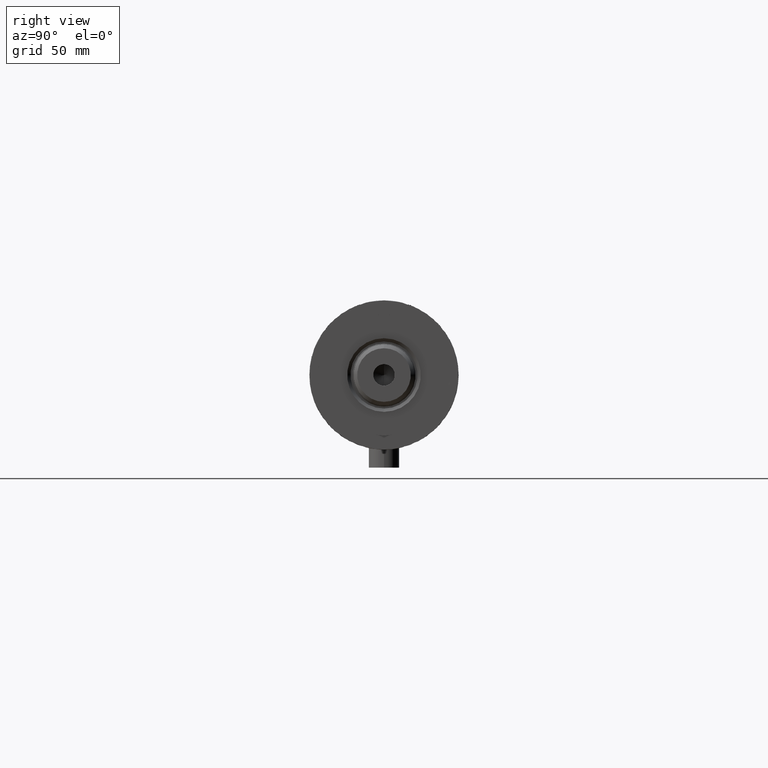
[diagram: clean part render]
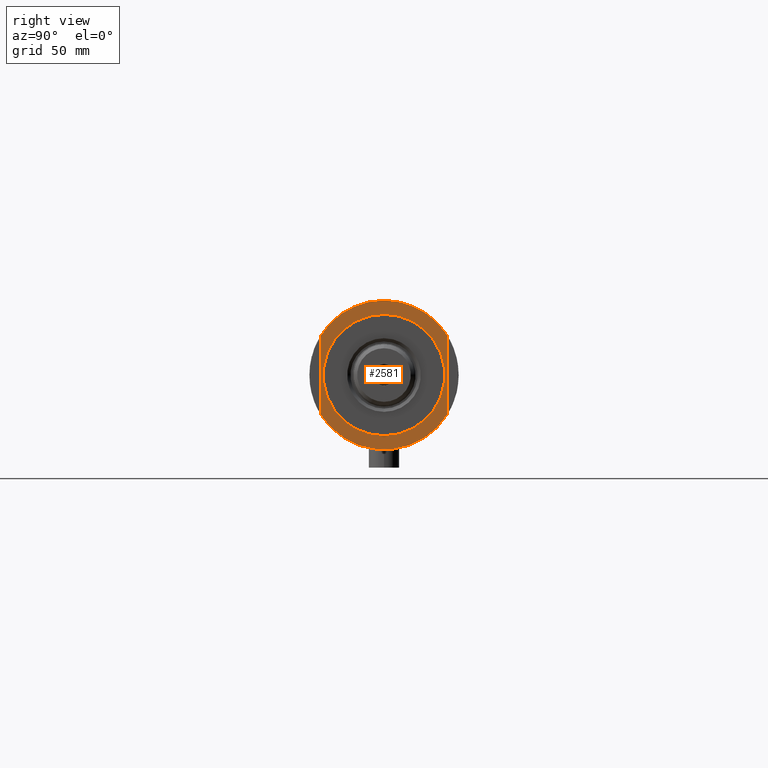
[diagram: same view with one face highlighted and labeled with its STEP entity id]
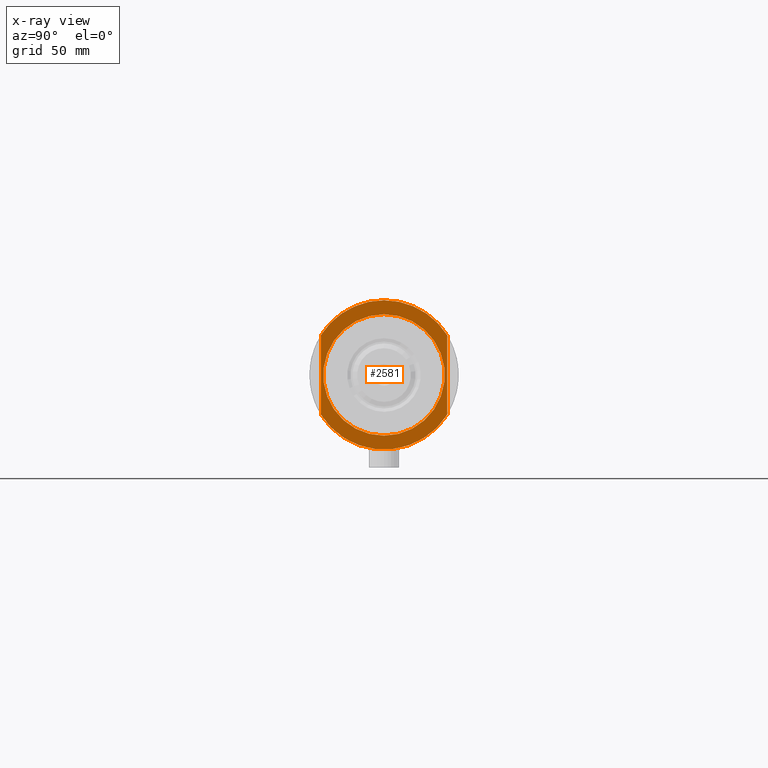
[diagram: x-ray of the same camera — body ghosted, the highlighted face saturated]
A machine part, right view. The second image highlights one B-rep face of the part: STEP entity #2581.
The next image is the same camera in x-ray: the body ghosted, the highlighted face saturated — about 0% of this face is hidden behind the body in this view.
In plain terms, the highlighted planar face has unit normal (1, 0, -0).
Its self-contained STEP definition (entity closure, byte-faithful):
#43 = VERTEX_POINT ( 'NONE', #2637 ) ;
#177 = DIRECTION ( 'NONE',  ( 1.000000000000000000, 0.000000000000000000, 0.000000000000000000 ) ) ;
#193 = DIRECTION ( 'NONE',  ( 0.000000000000000000, 0.000000000000000000, 1.000000000000000000 ) ) ;
#220 = CARTESIAN_POINT ( 'NONE',  ( -29.50000000000000355, 0.000000000000000000, 21.00000000000000000 ) ) ;
#242 = PLANE ( 'NONE',  #499 ) ;
#462 = CARTESIAN_POINT ( 'NONE',  ( 24.00000000000000000, 0.000000000000000000, 21.00000000000000000 ) ) ;
#490 = ORIENTED_EDGE ( 'NONE', *, *, #1220, .T. ) ;
#499 = AXIS2_PLACEMENT_3D ( 'NONE', #2124, #2542, #1049 ) ;
#515 = DIRECTION ( 'NONE',  ( -0.000000000000000000, -0.000000000000000000, -1.000000000000000000 ) ) ;
#537 = CARTESIAN_POINT ( 'NONE',  ( -15.66045976336583045, 24.99999999999999645, 21.00000000000000355 ) ) ;
#579 = AXIS2_PLACEMENT_3D ( 'NONE', #2901, #193, #2074 ) ;
#631 = DIRECTION ( 'NONE',  ( 1.000000000000000000, 0.000000000000000000, 0.000000000000000000 ) ) ;
#665 = VECTOR ( 'NONE', #1414, 1000.000000000000000 ) ;
#826 = CIRCLE ( 'NONE', #1754, 29.50000000000000355 ) ;
#863 = DIRECTION ( 'NONE',  ( 0.000000000000000000, 0.000000000000000000, 1.000000000000000000 ) ) ;
#897 = AXIS2_PLACEMENT_3D ( 'NONE', #3958, #4708, #631 ) ;
#917 = VERTEX_POINT ( 'NONE', #537 ) ;
#979 = EDGE_CURVE ( 'NONE', #4603, #2864, #2680, .T. ) ;
#997 = ORIENTED_EDGE ( 'NONE', *, *, #2135, .T. ) ;
#1049 = DIRECTION ( 'NONE',  ( 1.000000000000000000, 0.000000000000000000, -0.000000000000000000 ) ) ;
#1139 = EDGE_CURVE ( 'NONE', #43, #2171, #4364, .T. ) ;
#1160 = EDGE_CURVE ( 'NONE', #2864, #4603, #3694, .T. ) ;
#1220 = EDGE_CURVE ( 'NONE', #43, #4594, #4150, .T. ) ;
#1413 = ORIENTED_EDGE ( 'NONE', *, *, #1139, .F. ) ;
#1414 = DIRECTION ( 'NONE',  ( -1.000000000000000000, -0.000000000000000000, -0.000000000000000000 ) ) ;
#1479 = DIRECTION ( 'NONE',  ( 1.000000000000000000, 0.000000000000000000, 0.000000000000000000 ) ) ;
#1558 = DIRECTION ( 'NONE',  ( 1.000000000000000000, 0.000000000000000000, 0.000000000000000000 ) ) ;
#1649 = CARTESIAN_POINT ( 'NONE',  ( 0.000000000000000000, 0.000000000000000000, 21.00000000000000000 ) ) ;
#1754 = AXIS2_PLACEMENT_3D ( 'NONE', #2635, #2586, #1558 ) ;
#1795 = CARTESIAN_POINT ( 'NONE',  ( -15.66045976336583401, 25.00000000000000000, 21.00000000000000000 ) ) ;
#2041 = CARTESIAN_POINT ( 'NONE',  ( 15.66045976336583045, 24.99999999999999645, 20.99999999999999645 ) ) ;
#2074 = DIRECTION ( 'NONE',  ( 1.000000000000000000, 0.000000000000000000, 0.000000000000000000 ) ) ;
#2124 = CARTESIAN_POINT ( 'NONE',  ( 0.000000000000000000, 0.000000000000000000, 21.00000000000000000 ) ) ;
#2135 = EDGE_CURVE ( 'NONE', #917, #2569, #3835, .T. ) ;
#2171 = VERTEX_POINT ( 'NONE', #4738 ) ;
#2438 = FACE_BOUND ( 'NONE', #3891, .T. ) ;
#2542 = DIRECTION ( 'NONE',  ( 0.000000000000000000, 0.000000000000000000, 1.000000000000000000 ) ) ;
#2569 = VERTEX_POINT ( 'NONE', #220 ) ;
#2581 = ADVANCED_FACE ( 'NONE', ( #2438, #4366 ), #242, .T. ) ;
#2586 = DIRECTION ( 'NONE',  ( 0.000000000000000000, 0.000000000000000000, 1.000000000000000000 ) ) ;
#2635 = CARTESIAN_POINT ( 'NONE',  ( 0.000000000000000000, 0.000000000000000000, 21.00000000000000000 ) ) ;
#2637 = CARTESIAN_POINT ( 'NONE',  ( 15.66045976336583045, -25.00000000000000000, 21.00000000000000355 ) ) ;
#2680 = CIRCLE ( 'NONE', #4533, 24.00000000000000000 ) ;
#2864 = VERTEX_POINT ( 'NONE', #462 ) ;
#2901 = CARTESIAN_POINT ( 'NONE',  ( 0.000000000000000000, 0.000000000000000000, 21.00000000000000000 ) ) ;
#3462 = ORIENTED_EDGE ( 'NONE', *, *, #979, .T. ) ;
#3505 = CARTESIAN_POINT ( 'NONE',  ( 0.000000000000000000, 0.000000000000000000, 21.00000000000000000 ) ) ;
#3543 = VECTOR ( 'NONE', #1479, 1000.000000000000000 ) ;
#3565 = EDGE_LOOP ( 'NONE', ( #1413, #490, #3977, #997, #4025 ) ) ;
#3659 = EDGE_CURVE ( 'NONE', #2569, #2171, #826, .T. ) ;
#3694 = CIRCLE ( 'NONE', #897, 24.00000000000000000 ) ;
#3835 = CIRCLE ( 'NONE', #4074, 29.50000000000000355 ) ;
#3891 = EDGE_LOOP ( 'NONE', ( #4254, #3462 ) ) ;
#3906 = CARTESIAN_POINT ( 'NONE',  ( -15.66045976336583401, -25.00000000000000000, 21.00000000000000000 ) ) ;
#3953 = CARTESIAN_POINT ( 'NONE',  ( -24.00000000000000000, 2.939152317953647894E-15, 21.00000000000000000 ) ) ;
#3958 = CARTESIAN_POINT ( 'NONE',  ( 0.000000000000000000, 0.000000000000000000, 21.00000000000000000 ) ) ;
#3977 = ORIENTED_EDGE ( 'NONE', *, *, #4706, .F. ) ;
#4004 = LINE ( 'NONE', #1795, #3543 ) ;
#4025 = ORIENTED_EDGE ( 'NONE', *, *, #3659, .T. ) ;
#4074 = AXIS2_PLACEMENT_3D ( 'NONE', #3505, #863, #177 ) ;
#4150 = CIRCLE ( 'NONE', #579, 29.50000000000000355 ) ;
#4180 = DIRECTION ( 'NONE',  ( 1.000000000000000000, 0.000000000000000000, 0.000000000000000000 ) ) ;
#4254 = ORIENTED_EDGE ( 'NONE', *, *, #1160, .T. ) ;
#4364 = LINE ( 'NONE', #3906, #665 ) ;
#4366 = FACE_OUTER_BOUND ( 'NONE', #3565, .T. ) ;
#4533 = AXIS2_PLACEMENT_3D ( 'NONE', #1649, #515, #4180 ) ;
#4594 = VERTEX_POINT ( 'NONE', #2041 ) ;
#4603 = VERTEX_POINT ( 'NONE', #3953 ) ;
#4706 = EDGE_CURVE ( 'NONE', #917, #4594, #4004, .T. ) ;
#4708 = DIRECTION ( 'NONE',  ( -0.000000000000000000, -0.000000000000000000, -1.000000000000000000 ) ) ;
#4738 = CARTESIAN_POINT ( 'NONE',  ( -15.66045976336583045, -24.99999999999999645, 20.99999999999999645 ) ) ;